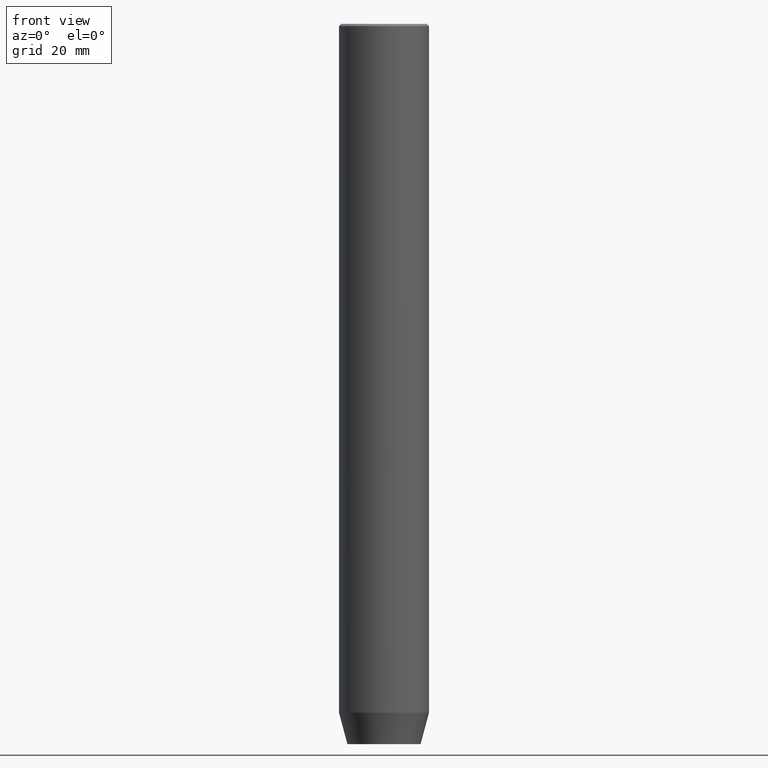
[diagram: clean part render]
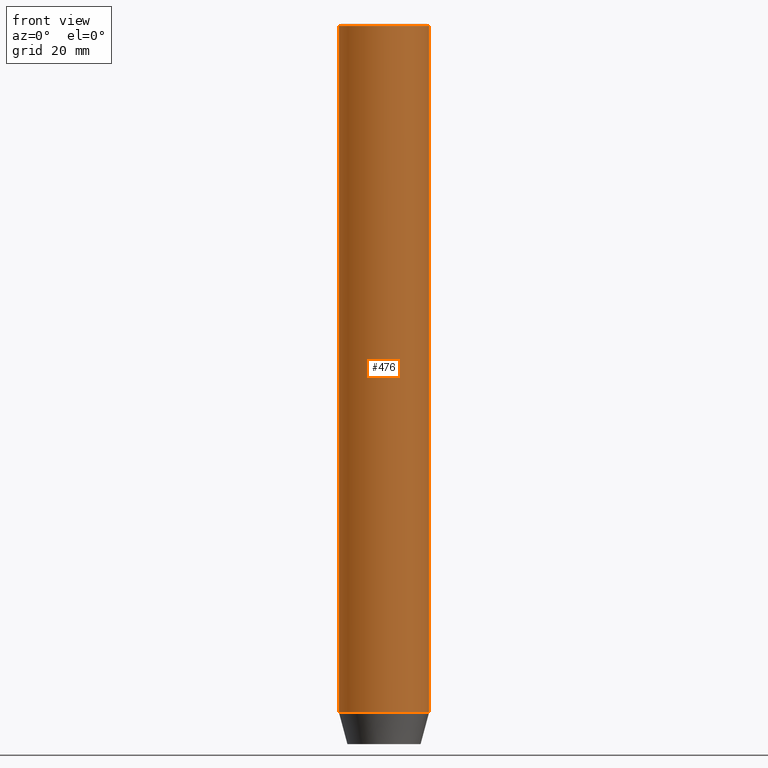
[diagram: same view with one face highlighted and labeled with its STEP entity id]
A machine part, front view. The second image highlights one B-rep face of the part: STEP entity #476.
In plain terms, the highlighted cylindrical surface (partial cylindrical patch) has radius 10 mm, axis along (-0, -0, 1).
Its self-contained STEP definition (entity closure, byte-faithful):
#3 = EDGE_CURVE ( 'NONE', #496, #109, #55, .T. ) ;
#4 = DIRECTION ( 'NONE',  ( 1.000000000000000000, 0.000000000000000000, 0.000000000000000000 ) ) ;
#46 = ORIENTED_EDGE ( 'NONE', *, *, #194, .T. ) ;
#54 = CARTESIAN_POINT ( 'NONE',  ( 0.000000000000000000, 0.000000000000000000, -0.5000000000000264233 ) ) ;
#55 = LINE ( 'NONE', #378, #57 ) ;
#57 = VECTOR ( 'NONE', #246, 1000.000000000000000 ) ;
#63 = ORIENTED_EDGE ( 'NONE', *, *, #276, .F. ) ;
#81 = ORIENTED_EDGE ( 'NONE', *, *, #3, .T. ) ;
#96 = EDGE_LOOP ( 'NONE', ( #63, #46, #81, #122 ) ) ;
#107 = DIRECTION ( 'NONE',  ( 1.000000000000000000, 0.000000000000000000, 0.000000000000000000 ) ) ;
#109 = VERTEX_POINT ( 'NONE', #475 ) ;
#120 = FACE_OUTER_BOUND ( 'NONE', #96, .T. ) ;
#122 = ORIENTED_EDGE ( 'NONE', *, *, #148, .T. ) ;
#137 = LINE ( 'NONE', #524, #289 ) ;
#148 = EDGE_CURVE ( 'NONE', #109, #586, #261, .T. ) ;
#149 = DIRECTION ( 'NONE',  ( 0.000000000000000000, 0.000000000000000000, -1.000000000000000000 ) ) ;
#170 = AXIS2_PLACEMENT_3D ( 'NONE', #430, #470, #107 ) ;
#187 = AXIS2_PLACEMENT_3D ( 'NONE', #472, #245, #274 ) ;
#194 = EDGE_CURVE ( 'NONE', #330, #496, #443, .T. ) ;
#245 = DIRECTION ( 'NONE',  ( -0.000000000000000000, -0.000000000000000000, 1.000000000000000000 ) ) ;
#246 = DIRECTION ( 'NONE',  ( -0.000000000000000000, -0.000000000000000000, 1.000000000000000000 ) ) ;
#261 = CIRCLE ( 'NONE', #477, 10.00000000000000000 ) ;
#274 = DIRECTION ( 'NONE',  ( 1.000000000000000000, 0.000000000000000000, 0.000000000000000000 ) ) ;
#276 = EDGE_CURVE ( 'NONE', #330, #586, #137, .T. ) ;
#289 = VECTOR ( 'NONE', #438, 1000.000000000000000 ) ;
#307 = CARTESIAN_POINT ( 'NONE',  ( -10.00000000000000000, 1.224646799147353256E-15, -0.5000000000000264233 ) ) ;
#330 = VERTEX_POINT ( 'NONE', #552 ) ;
#378 = CARTESIAN_POINT ( 'NONE',  ( 10.00000000000000000, 0.000000000000000000, 0.000000000000000000 ) ) ;
#430 = CARTESIAN_POINT ( 'NONE',  ( 0.000000000000000000, 0.000000000000000000, 0.000000000000000000 ) ) ;
#438 = DIRECTION ( 'NONE',  ( -0.000000000000000000, -0.000000000000000000, 1.000000000000000000 ) ) ;
#443 = CIRCLE ( 'NONE', #187, 10.00000000000000000 ) ;
#470 = DIRECTION ( 'NONE',  ( -0.000000000000000000, -0.000000000000000000, 1.000000000000000000 ) ) ;
#472 = CARTESIAN_POINT ( 'NONE',  ( 0.000000000000000000, 0.000000000000000000, -152.9999999999999716 ) ) ;
#475 = CARTESIAN_POINT ( 'NONE',  ( 10.00000000000000000, 0.000000000000000000, -0.5000000000000264233 ) ) ;
#476 = ADVANCED_FACE ( 'NONE', ( #120 ), #513, .T. ) ;
#477 = AXIS2_PLACEMENT_3D ( 'NONE', #54, #149, #4 ) ;
#496 = VERTEX_POINT ( 'NONE', #554 ) ;
#513 = CYLINDRICAL_SURFACE ( 'NONE', #170, 10.00000000000000000 ) ;
#524 = CARTESIAN_POINT ( 'NONE',  ( -10.00000000000000000, 1.224646799147353256E-15, 0.000000000000000000 ) ) ;
#552 = CARTESIAN_POINT ( 'NONE',  ( -10.00000000000000000, 1.224646799147353256E-15, -152.9999999999999716 ) ) ;
#554 = CARTESIAN_POINT ( 'NONE',  ( 10.00000000000000000, 0.000000000000000000, -152.9999999999999716 ) ) ;
#586 = VERTEX_POINT ( 'NONE', #307 ) ;